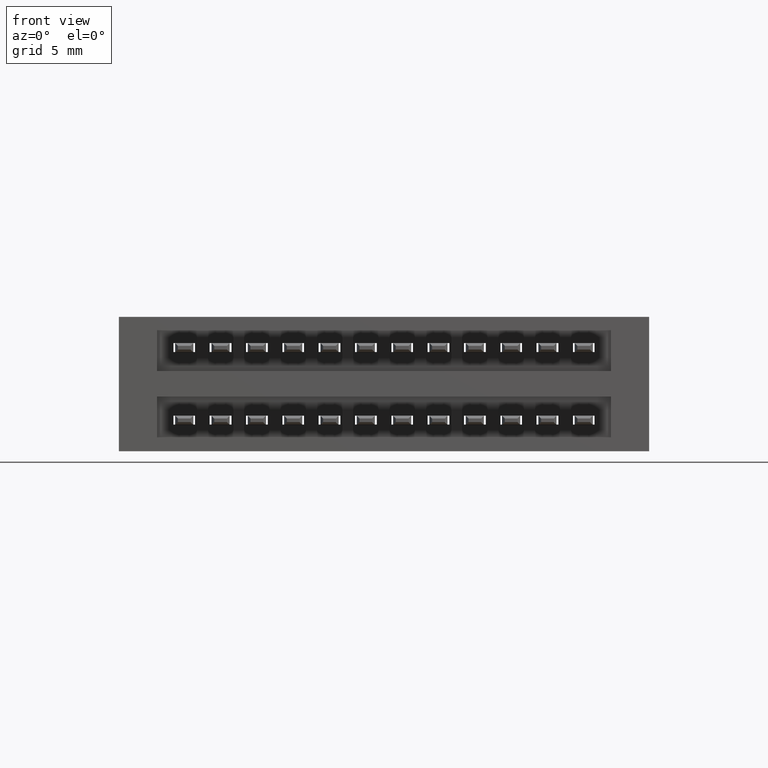
[diagram: clean part render]
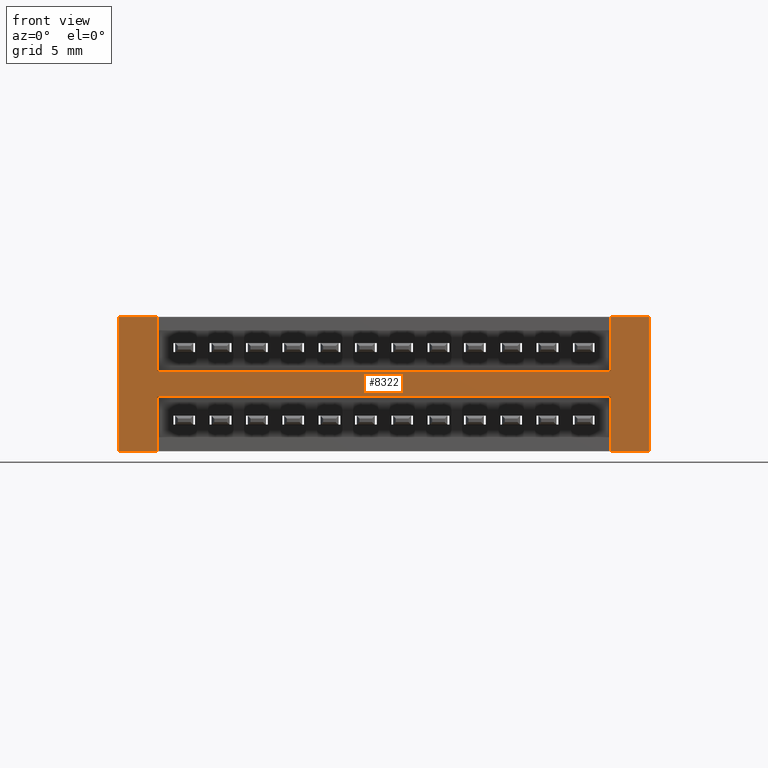
[diagram: same view with one face highlighted and labeled with its STEP entity id]
A machine part, front view. The second image highlights one B-rep face of the part: STEP entity #8322.
In plain terms, the highlighted planar face has unit normal (0, -1, 0).
Its self-contained STEP definition (entity closure, byte-faithful):
#130 = VECTOR ( 'NONE', #5441, 39.37007874015748100 ) ;
#133 = EDGE_CURVE ( 'NONE', #3326, #2964, #10454, .T. ) ;
#144 = ORIENTED_EDGE ( 'NONE', *, *, #8812, .F. ) ;
#245 = AXIS2_PLACEMENT_3D ( 'NONE', #6329, #963, #7385 ) ;
#259 = VECTOR ( 'NONE', #8098, 39.37007874015748100 ) ;
#438 = CARTESIAN_POINT ( 'NONE',  ( 0.0000000000000000000, 0.0000000000000000000, -0.3700000000000001600 ) ) ;
#724 = LINE ( 'NONE', #438, #8755 ) ;
#784 = ORIENTED_EDGE ( 'NONE', *, *, #11729, .T. ) ;
#963 = DIRECTION ( 'NONE',  ( 0.0000000000000000000, -1.000000000000000000, 0.0000000000000000000 ) ) ;
#1184 = VERTEX_POINT ( 'NONE', #3931 ) ;
#1234 = VECTOR ( 'NONE', #10843, 39.37007874015748100 ) ;
#1281 = VERTEX_POINT ( 'NONE', #2012 ) ;
#1297 = ORIENTED_EDGE ( 'NONE', *, *, #133, .F. ) ;
#1475 = VERTEX_POINT ( 'NONE', #5551 ) ;
#1492 = EDGE_CURVE ( 'NONE', #1281, #5967, #11603, .T. ) ;
#1621 = ORIENTED_EDGE ( 'NONE', *, *, #8033, .F. ) ;
#1641 = CARTESIAN_POINT ( 'NONE',  ( 1.642500000000000100, 0.0000000000000000000, -0.3700000000000000000 ) ) ;
#1689 = CARTESIAN_POINT ( 'NONE',  ( 1.747500000000000100, 0.0000000000000000000, -0.3699999999999998300 ) ) ;
#2012 = CARTESIAN_POINT ( 'NONE',  ( 0.2874999999999999800, 0.0000000000000000000, 0.0000000000000000000 ) ) ;
#2103 = CARTESIAN_POINT ( 'NONE',  ( 1.642500000000000100, 0.0000000000000000000, -0.2200000000000000000 ) ) ;
#2253 = VERTEX_POINT ( 'NONE', #11397 ) ;
#2354 = LINE ( 'NONE', #3141, #12400 ) ;
#2635 = VERTEX_POINT ( 'NONE', #10233 ) ;
#2701 = ORIENTED_EDGE ( 'NONE', *, *, #8209, .F. ) ;
#2727 = CARTESIAN_POINT ( 'NONE',  ( 1.642500000000000100, 0.0000000000000000000, 0.0000000000000000000 ) ) ;
#2964 = VERTEX_POINT ( 'NONE', #2103 ) ;
#3141 = CARTESIAN_POINT ( 'NONE',  ( 0.3924999999999996800, 0.0000000000000000000, -0.2200000000000000000 ) ) ;
#3163 = DIRECTION ( 'NONE',  ( 1.000000000000000000, 0.0000000000000000000, 0.0000000000000000000 ) ) ;
#3326 = VERTEX_POINT ( 'NONE', #3843 ) ;
#3437 = CARTESIAN_POINT ( 'NONE',  ( 0.3924999999999996800, 0.0000000000000000000, -0.3700000000000000000 ) ) ;
#3621 = DIRECTION ( 'NONE',  ( 1.000000000000000000, 0.0000000000000000000, 0.0000000000000000000 ) ) ;
#3791 = FACE_OUTER_BOUND ( 'NONE', #8562, .T. ) ;
#3843 = CARTESIAN_POINT ( 'NONE',  ( 1.642500000000000100, 0.0000000000000000000, -0.3700000000000000000 ) ) ;
#3931 = CARTESIAN_POINT ( 'NONE',  ( 1.642500000000000100, 0.0000000000000000000, -0.1499999999999999900 ) ) ;
#4199 = VERTEX_POINT ( 'NONE', #12972 ) ;
#4495 = CARTESIAN_POINT ( 'NONE',  ( 0.0000000000000000000, 0.0000000000000000000, 0.0000000000000000000 ) ) ;
#4875 = DIRECTION ( 'NONE',  ( 1.000000000000000000, 0.0000000000000000000, 0.0000000000000000000 ) ) ;
#4909 = ORIENTED_EDGE ( 'NONE', *, *, #6365, .F. ) ;
#5246 = PLANE ( 'NONE',  #245 ) ;
#5441 = DIRECTION ( 'NONE',  ( 0.0000000000000000000, 0.0000000000000000000, 1.000000000000000000 ) ) ;
#5551 = CARTESIAN_POINT ( 'NONE',  ( 1.642500000000000100, 0.0000000000000000000, 0.0000000000000000000 ) ) ;
#5606 = ORIENTED_EDGE ( 'NONE', *, *, #11356, .F. ) ;
#5616 = DIRECTION ( 'NONE',  ( -7.383372955849363900E-016, -0.0000000000000000000, 1.000000000000000000 ) ) ;
#5786 = EDGE_CURVE ( 'NONE', #1281, #2253, #8825, .T. ) ;
#5844 = LINE ( 'NONE', #6093, #8305 ) ;
#5967 = VERTEX_POINT ( 'NONE', #12099 ) ;
#6002 = VECTOR ( 'NONE', #3621, 39.37007874015748100 ) ;
#6093 = CARTESIAN_POINT ( 'NONE',  ( 0.0000000000000000000, 0.0000000000000000000, -0.3700000000000001600 ) ) ;
#6329 = CARTESIAN_POINT ( 'NONE',  ( 0.0000000000000000000, 0.0000000000000000000, -0.3700000000000001600 ) ) ;
#6365 = EDGE_CURVE ( 'NONE', #11070, #1184, #9993, .T. ) ;
#6385 = CARTESIAN_POINT ( 'NONE',  ( 0.3924999999999996800, 0.0000000000000000000, -0.1499999999999999900 ) ) ;
#6401 = VECTOR ( 'NONE', #7773, 39.37007874015748100 ) ;
#6420 = VECTOR ( 'NONE', #4875, 39.37007874015748100 ) ;
#6536 = LINE ( 'NONE', #10903, #259 ) ;
#6665 = VECTOR ( 'NONE', #9706, 39.37007874015748100 ) ;
#7373 = DIRECTION ( 'NONE',  ( -1.000000000000000000, -0.0000000000000000000, -0.0000000000000000000 ) ) ;
#7381 = VECTOR ( 'NONE', #3163, 39.37007874015748100 ) ;
#7385 = DIRECTION ( 'NONE',  ( 0.0000000000000000000, -0.0000000000000000000, -1.000000000000000000 ) ) ;
#7773 = DIRECTION ( 'NONE',  ( 0.0000000000000000000, 0.0000000000000000000, -1.000000000000000000 ) ) ;
#7822 = DIRECTION ( 'NONE',  ( -1.000000000000000000, -0.0000000000000000000, -6.712157232590327400E-017 ) ) ;
#7839 = CARTESIAN_POINT ( 'NONE',  ( 1.747499999999999800, 0.0000000000000000000, 0.0000000000000000000 ) ) ;
#7933 = VERTEX_POINT ( 'NONE', #3437 ) ;
#7944 = EDGE_CURVE ( 'NONE', #2635, #7933, #9674, .T. ) ;
#7990 = ORIENTED_EDGE ( 'NONE', *, *, #1492, .T. ) ;
#8014 = EDGE_CURVE ( 'NONE', #7933, #5967, #724, .T. ) ;
#8033 = EDGE_CURVE ( 'NONE', #1475, #4199, #10960, .T. ) ;
#8098 = DIRECTION ( 'NONE',  ( 0.0000000000000000000, 0.0000000000000000000, -1.000000000000000000 ) ) ;
#8133 = VERTEX_POINT ( 'NONE', #1689 ) ;
#8209 = EDGE_CURVE ( 'NONE', #8133, #3326, #5844, .T. ) ;
#8305 = VECTOR ( 'NONE', #11022, 39.37007874015748100 ) ;
#8322 = ADVANCED_FACE ( 'NONE', ( #3791 ), #5246, .T. ) ;
#8562 = EDGE_LOOP ( 'NONE', ( #784, #1621, #144, #4909, #9750, #11660, #7990, #12010, #12380, #5606, #1297, #2701 ) ) ;
#8726 = CARTESIAN_POINT ( 'NONE',  ( 0.3924999999999996800, 0.0000000000000000000, -0.3700000000000000000 ) ) ;
#8755 = VECTOR ( 'NONE', #7822, 39.37007874015748100 ) ;
#8812 = EDGE_CURVE ( 'NONE', #1184, #1475, #11974, .T. ) ;
#8825 = LINE ( 'NONE', #4495, #6420 ) ;
#9674 = LINE ( 'NONE', #8726, #6665 ) ;
#9706 = DIRECTION ( 'NONE',  ( -0.0000000000000000000, -0.0000000000000000000, -1.000000000000000000 ) ) ;
#9750 = ORIENTED_EDGE ( 'NONE', *, *, #10208, .F. ) ;
#9820 = CARTESIAN_POINT ( 'NONE',  ( 0.0000000000000000000, 0.0000000000000000000, 0.0000000000000000000 ) ) ;
#9993 = LINE ( 'NONE', #6385, #7381 ) ;
#10208 = EDGE_CURVE ( 'NONE', #2253, #11070, #6536, .T. ) ;
#10233 = CARTESIAN_POINT ( 'NONE',  ( 0.3924999999999996800, 0.0000000000000000000, -0.2200000000000000000 ) ) ;
#10454 = LINE ( 'NONE', #1641, #130 ) ;
#10843 = DIRECTION ( 'NONE',  ( -0.0000000000000000000, -0.0000000000000000000, 1.000000000000000000 ) ) ;
#10903 = CARTESIAN_POINT ( 'NONE',  ( 0.3924999999999996800, 0.0000000000000000000, 0.0000000000000000000 ) ) ;
#10929 = CARTESIAN_POINT ( 'NONE',  ( 0.3924999999999996800, 0.0000000000000000000, -0.1499999999999999900 ) ) ;
#10960 = LINE ( 'NONE', #9820, #6002 ) ;
#11022 = DIRECTION ( 'NONE',  ( -1.000000000000000000, -0.0000000000000000000, -6.712157232590327400E-017 ) ) ;
#11070 = VERTEX_POINT ( 'NONE', #10929 ) ;
#11356 = EDGE_CURVE ( 'NONE', #2964, #2635, #2354, .T. ) ;
#11391 = VECTOR ( 'NONE', #5616, 39.37007874015748100 ) ;
#11397 = CARTESIAN_POINT ( 'NONE',  ( 0.3924999999999996800, 0.0000000000000000000, 0.0000000000000000000 ) ) ;
#11603 = LINE ( 'NONE', #11877, #6401 ) ;
#11660 = ORIENTED_EDGE ( 'NONE', *, *, #5786, .F. ) ;
#11689 = LINE ( 'NONE', #7839, #11391 ) ;
#11729 = EDGE_CURVE ( 'NONE', #8133, #4199, #11689, .T. ) ;
#11877 = CARTESIAN_POINT ( 'NONE',  ( 0.2874999999999999800, 0.0000000000000000000, 0.0000000000000000000 ) ) ;
#11974 = LINE ( 'NONE', #2727, #1234 ) ;
#12010 = ORIENTED_EDGE ( 'NONE', *, *, #8014, .F. ) ;
#12099 = CARTESIAN_POINT ( 'NONE',  ( 0.2874999999999999800, 0.0000000000000000000, -0.3700000000000001600 ) ) ;
#12380 = ORIENTED_EDGE ( 'NONE', *, *, #7944, .F. ) ;
#12400 = VECTOR ( 'NONE', #7373, 39.37007874015748100 ) ;
#12972 = CARTESIAN_POINT ( 'NONE',  ( 1.747499999999999800, 0.0000000000000000000, 0.0000000000000000000 ) ) ;